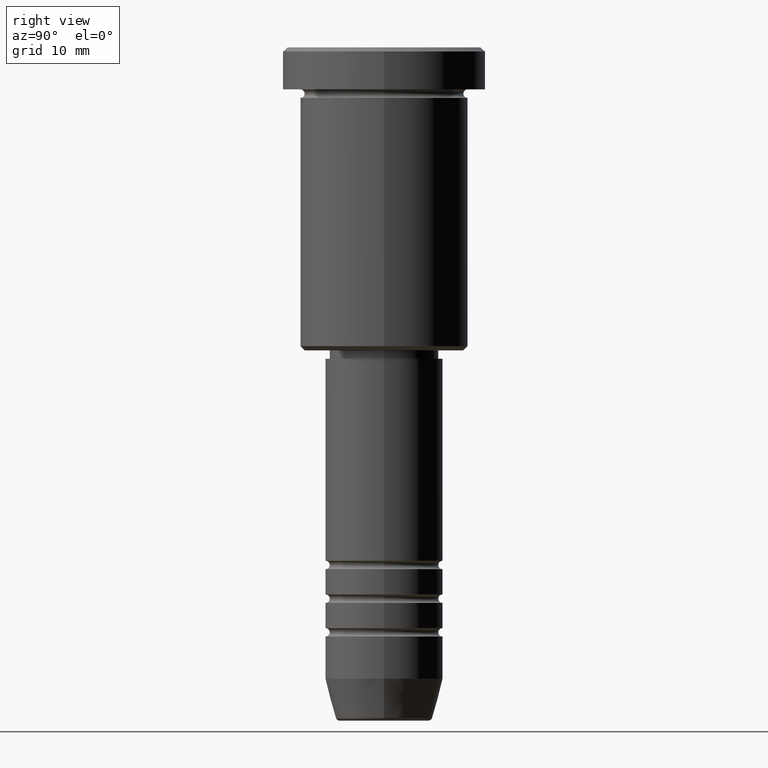
[diagram: clean part render]
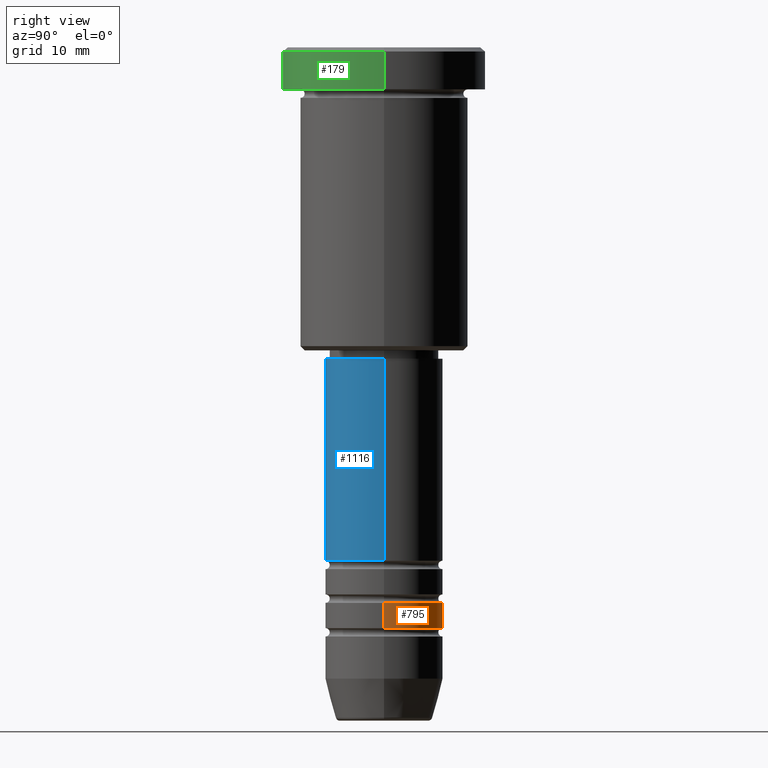
[diagram: same view with three faces highlighted in distinct colors, each labeled with its STEP entity id]
A machine part, right view with three faces highlighted in distinct colors.
Their STEP definitions:

[orange] entity #795 — the highlighted cylindrical surface (partial cylindrical patch) has radius 7 mm, axis along (-0, -0, 1).
#3 = DIRECTION ( 'NONE',  ( -0.000000000000000000, -0.000000000000000000, 1.000000000000000000 ) ) ;
#4 = DIRECTION ( 'NONE',  ( -0.000000000000000000, -0.000000000000000000, 1.000000000000000000 ) ) ;
#66 = VERTEX_POINT ( 'NONE', #752 ) ;
#171 = CARTESIAN_POINT ( 'NONE',  ( 7.000000000000000888, 0.000000000000000000, -69.00000000000000000 ) ) ;
#193 = CARTESIAN_POINT ( 'NONE',  ( 0.000000000000000000, 0.000000000000000000, -69.00000000000000000 ) ) ;
#197 = CARTESIAN_POINT ( 'NONE',  ( 7.000000000000000000, 0.000000000000000000, -66.00000000000000000 ) ) ;
#213 = CARTESIAN_POINT ( 'NONE',  ( -7.000000000000000888, 8.572527594031474176E-16, -69.00000000000000000 ) ) ;
#255 = LINE ( 'NONE', #265, #567 ) ;
#265 = CARTESIAN_POINT ( 'NONE',  ( -7.000000000000000888, 8.572527594031474176E-16, 0.000000000000000000 ) ) ;
#303 = VERTEX_POINT ( 'NONE', #171 ) ;
#311 = CARTESIAN_POINT ( 'NONE',  ( 0.000000000000000000, 0.000000000000000000, -66.00000000000000000 ) ) ;
#312 = VERTEX_POINT ( 'NONE', #197 ) ;
#340 = AXIS2_PLACEMENT_3D ( 'NONE', #193, #3, #1098 ) ;
#360 = CYLINDRICAL_SURFACE ( 'NONE', #418, 7.000000000000000888 ) ;
#365 = EDGE_CURVE ( 'NONE', #303, #924, #528, .T. ) ;
#403 = EDGE_LOOP ( 'NONE', ( #529, #590, #887, #861 ) ) ;
#418 = AXIS2_PLACEMENT_3D ( 'NONE', #458, #1001, #811 ) ;
#458 = CARTESIAN_POINT ( 'NONE',  ( 0.000000000000000000, 0.000000000000000000, 0.000000000000000000 ) ) ;
#519 = DIRECTION ( 'NONE',  ( -0.000000000000000000, -0.000000000000000000, 1.000000000000000000 ) ) ;
#528 = CIRCLE ( 'NONE', #340, 7.000000000000000888 ) ;
#529 = ORIENTED_EDGE ( 'NONE', *, *, #365, .T. ) ;
#567 = VECTOR ( 'NONE', #822, 1000.000000000000000 ) ;
#590 = ORIENTED_EDGE ( 'NONE', *, *, #740, .T. ) ;
#603 = DIRECTION ( 'NONE',  ( 1.000000000000000000, 0.000000000000000000, 0.000000000000000000 ) ) ;
#720 = LINE ( 'NONE', #1006, #1050 ) ;
#740 = EDGE_CURVE ( 'NONE', #924, #66, #255, .T. ) ;
#752 = CARTESIAN_POINT ( 'NONE',  ( -7.000000000000000000, 8.572527594031473190E-16, -66.00000000000000000 ) ) ;
#795 = ADVANCED_FACE ( 'NONE', ( #1179 ), #360, .T. ) ;
#811 = DIRECTION ( 'NONE',  ( 1.000000000000000000, 0.000000000000000000, 0.000000000000000000 ) ) ;
#822 = DIRECTION ( 'NONE',  ( -0.000000000000000000, -0.000000000000000000, 1.000000000000000000 ) ) ;
#855 = AXIS2_PLACEMENT_3D ( 'NONE', #311, #519, #603 ) ;
#861 = ORIENTED_EDGE ( 'NONE', *, *, #1166, .F. ) ;
#887 = ORIENTED_EDGE ( 'NONE', *, *, #999, .F. ) ;
#924 = VERTEX_POINT ( 'NONE', #213 ) ;
#933 = CIRCLE ( 'NONE', #855, 7.000000000000000000 ) ;
#999 = EDGE_CURVE ( 'NONE', #312, #66, #933, .T. ) ;
#1001 = DIRECTION ( 'NONE',  ( -0.000000000000000000, -0.000000000000000000, 1.000000000000000000 ) ) ;
#1006 = CARTESIAN_POINT ( 'NONE',  ( 7.000000000000000888, 0.000000000000000000, 0.000000000000000000 ) ) ;
#1050 = VECTOR ( 'NONE', #4, 1000.000000000000000 ) ;
#1098 = DIRECTION ( 'NONE',  ( 1.000000000000000000, 0.000000000000000000, 0.000000000000000000 ) ) ;
#1166 = EDGE_CURVE ( 'NONE', #303, #312, #720, .T. ) ;
#1179 = FACE_OUTER_BOUND ( 'NONE', #403, .T. ) ;

[blue] entity #1116 — the highlighted cylindrical surface (partial cylindrical patch) has radius 7 mm, axis along (-0, -0, 1).
#24 = VERTEX_POINT ( 'NONE', #445 ) ;
#93 = CARTESIAN_POINT ( 'NONE',  ( 0.000000000000000000, 0.000000000000000000, -61.00000000000000711 ) ) ;
#104 = DIRECTION ( 'NONE',  ( -0.000000000000000000, -0.000000000000000000, 1.000000000000000000 ) ) ;
#149 = AXIS2_PLACEMENT_3D ( 'NONE', #93, #824, #362 ) ;
#153 = CYLINDRICAL_SURFACE ( 'NONE', #1161, 7.000000000000000888 ) ;
#206 = VECTOR ( 'NONE', #631, 1000.000000000000000 ) ;
#234 = EDGE_CURVE ( 'NONE', #774, #941, #1033, .T. ) ;
#294 = VECTOR ( 'NONE', #563, 1000.000000000000000 ) ;
#304 = EDGE_CURVE ( 'NONE', #24, #929, #673, .T. ) ;
#341 = DIRECTION ( 'NONE',  ( -0.000000000000000000, -0.000000000000000000, 1.000000000000000000 ) ) ;
#362 = DIRECTION ( 'NONE',  ( 1.000000000000000000, 0.000000000000000000, 0.000000000000000000 ) ) ;
#431 = CARTESIAN_POINT ( 'NONE',  ( 0.000000000000000000, 0.000000000000000000, 0.000000000000000000 ) ) ;
#445 = CARTESIAN_POINT ( 'NONE',  ( -7.000000000000000888, 8.572527594031474176E-16, -61.00000000000000711 ) ) ;
#463 = LINE ( 'NONE', #1167, #206 ) ;
#542 = CARTESIAN_POINT ( 'NONE',  ( 0.000000000000000000, 0.000000000000000000, -37.00000000000000711 ) ) ;
#559 = DIRECTION ( 'NONE',  ( 1.000000000000000000, 0.000000000000000000, 0.000000000000000000 ) ) ;
#563 = DIRECTION ( 'NONE',  ( -0.000000000000000000, -0.000000000000000000, 1.000000000000000000 ) ) ;
#586 = LINE ( 'NONE', #934, #294 ) ;
#631 = DIRECTION ( 'NONE',  ( -0.000000000000000000, -0.000000000000000000, 1.000000000000000000 ) ) ;
#673 = CIRCLE ( 'NONE', #149, 7.000000000000000888 ) ;
#753 = CARTESIAN_POINT ( 'NONE',  ( 7.000000000000000888, 0.000000000000000000, -61.00000000000000711 ) ) ;
#768 = CARTESIAN_POINT ( 'NONE',  ( 7.000000000000000888, 0.000000000000000000, -37.00000000000000711 ) ) ;
#774 = VERTEX_POINT ( 'NONE', #1173 ) ;
#805 = AXIS2_PLACEMENT_3D ( 'NONE', #542, #104, #559 ) ;
#809 = ORIENTED_EDGE ( 'NONE', *, *, #1143, .T. ) ;
#813 = ORIENTED_EDGE ( 'NONE', *, *, #829, .F. ) ;
#824 = DIRECTION ( 'NONE',  ( -0.000000000000000000, -0.000000000000000000, 1.000000000000000000 ) ) ;
#829 = EDGE_CURVE ( 'NONE', #24, #774, #586, .T. ) ;
#929 = VERTEX_POINT ( 'NONE', #753 ) ;
#934 = CARTESIAN_POINT ( 'NONE',  ( -7.000000000000000888, 8.572527594031474176E-16, 0.000000000000000000 ) ) ;
#941 = VERTEX_POINT ( 'NONE', #768 ) ;
#979 = FACE_OUTER_BOUND ( 'NONE', #1061, .T. ) ;
#1033 = CIRCLE ( 'NONE', #805, 7.000000000000000888 ) ;
#1056 = ORIENTED_EDGE ( 'NONE', *, *, #304, .T. ) ;
#1061 = EDGE_LOOP ( 'NONE', ( #813, #1056, #809, #1152 ) ) ;
#1079 = DIRECTION ( 'NONE',  ( 1.000000000000000000, 0.000000000000000000, 0.000000000000000000 ) ) ;
#1116 = ADVANCED_FACE ( 'NONE', ( #979 ), #153, .T. ) ;
#1143 = EDGE_CURVE ( 'NONE', #929, #941, #463, .T. ) ;
#1152 = ORIENTED_EDGE ( 'NONE', *, *, #234, .F. ) ;
#1161 = AXIS2_PLACEMENT_3D ( 'NONE', #431, #341, #1079 ) ;
#1167 = CARTESIAN_POINT ( 'NONE',  ( 7.000000000000000888, 0.000000000000000000, 0.000000000000000000 ) ) ;
#1173 = CARTESIAN_POINT ( 'NONE',  ( -7.000000000000000888, 8.572527594031474176E-16, -37.00000000000000711 ) ) ;

[green] entity #179 — the highlighted cylindrical surface (partial cylindrical patch) has radius 12 mm, axis along (-0, -0, 1).
#10 = CARTESIAN_POINT ( 'NONE',  ( -12.00000000000000000, 1.469576158976823947E-15, -5.000000000000000000 ) ) ;
#54 = LINE ( 'NONE', #231, #498 ) ;
#60 = CARTESIAN_POINT ( 'NONE',  ( 0.000000000000000000, 0.000000000000000000, 0.000000000000000000 ) ) ;
#73 = CARTESIAN_POINT ( 'NONE',  ( -12.00000000000000000, 1.469576158976823947E-15, 0.000000000000000000 ) ) ;
#77 = ORIENTED_EDGE ( 'NONE', *, *, #544, .F. ) ;
#91 = AXIS2_PLACEMENT_3D ( 'NONE', #959, #1160, #415 ) ;
#141 = DIRECTION ( 'NONE',  ( 1.000000000000000000, 0.000000000000000000, 0.000000000000000000 ) ) ;
#179 = ADVANCED_FACE ( 'NONE', ( #617 ), #597, .T. ) ;
#205 = AXIS2_PLACEMENT_3D ( 'NONE', #353, #1084, #917 ) ;
#231 = CARTESIAN_POINT ( 'NONE',  ( 12.00000000000000000, 0.000000000000000000, 0.000000000000000000 ) ) ;
#239 = DIRECTION ( 'NONE',  ( -0.000000000000000000, -0.000000000000000000, 1.000000000000000000 ) ) ;
#313 = DIRECTION ( 'NONE',  ( -0.000000000000000000, -0.000000000000000000, 1.000000000000000000 ) ) ;
#329 = VERTEX_POINT ( 'NONE', #1094 ) ;
#331 = LINE ( 'NONE', #73, #928 ) ;
#338 = ORIENTED_EDGE ( 'NONE', *, *, #810, .T. ) ;
#353 = CARTESIAN_POINT ( 'NONE',  ( 0.000000000000000000, 0.000000000000000000, -5.000000000000000000 ) ) ;
#367 = VERTEX_POINT ( 'NONE', #446 ) ;
#415 = DIRECTION ( 'NONE',  ( 1.000000000000000000, 0.000000000000000000, 0.000000000000000000 ) ) ;
#446 = CARTESIAN_POINT ( 'NONE',  ( -12.00000000000000000, 1.469576158976823947E-15, -0.4999999999999987232 ) ) ;
#498 = VECTOR ( 'NONE', #239, 1000.000000000000000 ) ;
#509 = CIRCLE ( 'NONE', #91, 12.00000000000000000 ) ;
#517 = EDGE_LOOP ( 'NONE', ( #77, #338, #1118, #662 ) ) ;
#544 = EDGE_CURVE ( 'NONE', #892, #367, #331, .T. ) ;
#580 = EDGE_CURVE ( 'NONE', #1023, #329, #54, .T. ) ;
#597 = CYLINDRICAL_SURFACE ( 'NONE', #690, 12.00000000000000000 ) ;
#612 = DIRECTION ( 'NONE',  ( -0.000000000000000000, -0.000000000000000000, 1.000000000000000000 ) ) ;
#617 = FACE_OUTER_BOUND ( 'NONE', #517, .T. ) ;
#662 = ORIENTED_EDGE ( 'NONE', *, *, #1087, .T. ) ;
#690 = AXIS2_PLACEMENT_3D ( 'NONE', #60, #612, #141 ) ;
#803 = CIRCLE ( 'NONE', #205, 12.00000000000000000 ) ;
#810 = EDGE_CURVE ( 'NONE', #892, #1023, #803, .T. ) ;
#872 = CARTESIAN_POINT ( 'NONE',  ( 12.00000000000000000, 0.000000000000000000, -5.000000000000000000 ) ) ;
#892 = VERTEX_POINT ( 'NONE', #10 ) ;
#917 = DIRECTION ( 'NONE',  ( 1.000000000000000000, 0.000000000000000000, 0.000000000000000000 ) ) ;
#928 = VECTOR ( 'NONE', #313, 1000.000000000000000 ) ;
#959 = CARTESIAN_POINT ( 'NONE',  ( 0.000000000000000000, 0.000000000000000000, -0.4999999999999987232 ) ) ;
#1023 = VERTEX_POINT ( 'NONE', #872 ) ;
#1084 = DIRECTION ( 'NONE',  ( -0.000000000000000000, -0.000000000000000000, 1.000000000000000000 ) ) ;
#1087 = EDGE_CURVE ( 'NONE', #329, #367, #509, .T. ) ;
#1094 = CARTESIAN_POINT ( 'NONE',  ( 12.00000000000000000, 0.000000000000000000, -0.4999999999999987232 ) ) ;
#1118 = ORIENTED_EDGE ( 'NONE', *, *, #580, .T. ) ;
#1160 = DIRECTION ( 'NONE',  ( 0.000000000000000000, 0.000000000000000000, -1.000000000000000000 ) ) ;